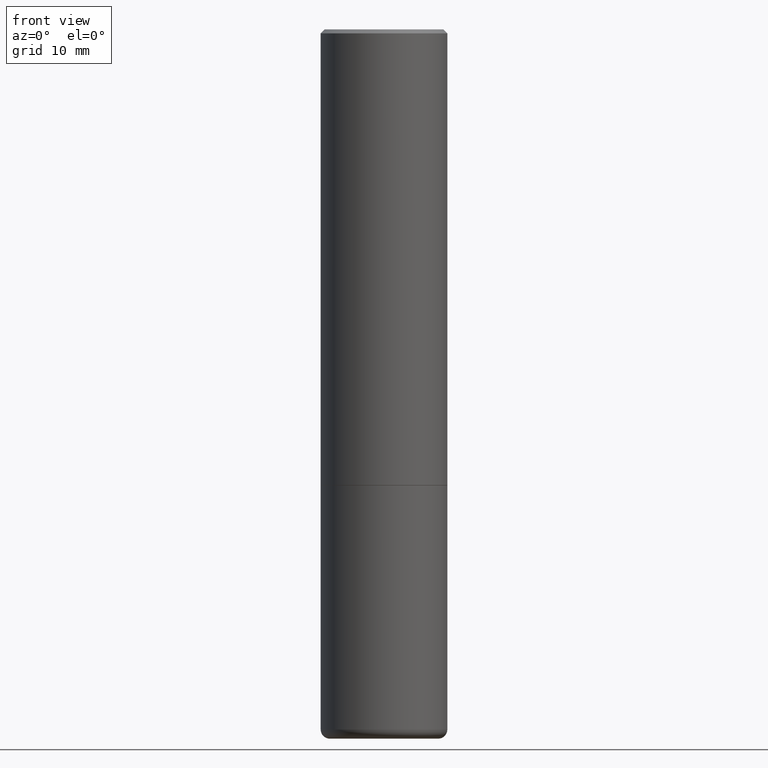
[diagram: clean part render]
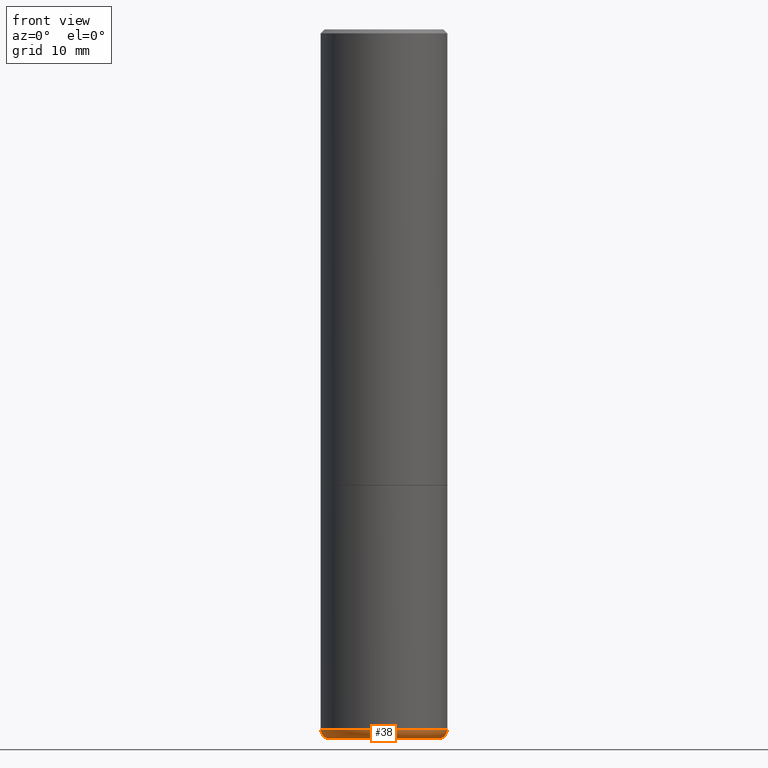
[diagram: same view with one face highlighted and labeled with its STEP entity id]
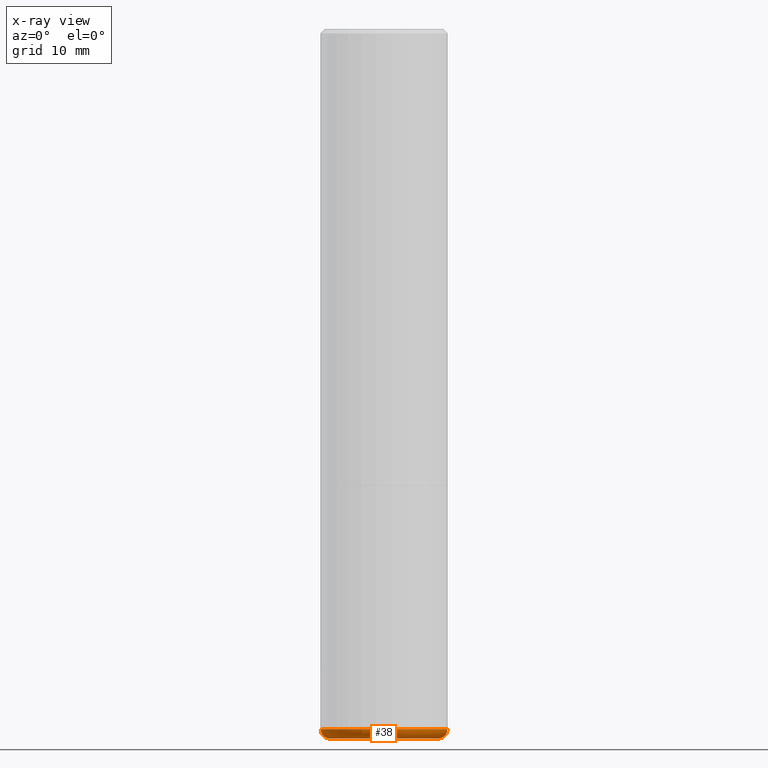
[diagram: x-ray of the same camera — body ghosted, the highlighted face saturated]
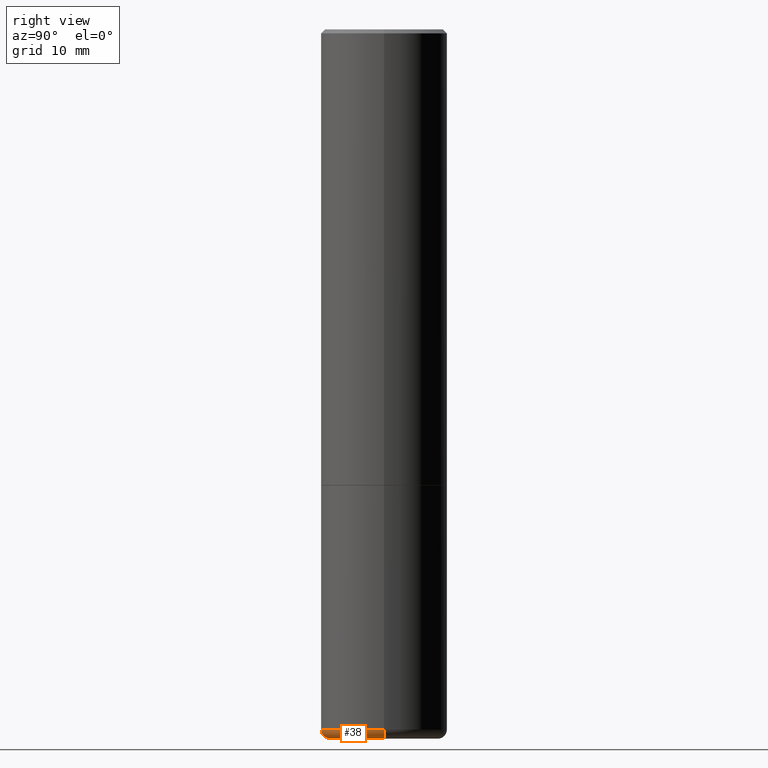
[diagram: same view with one face highlighted and labeled with its STEP entity id]
A machine part, front view. The second image highlights one B-rep face of the part: STEP entity #38.
The next image is the same camera in x-ray: the body ghosted, the highlighted face saturated — about 0% of this face is hidden behind the body in this view.
A second angle (right view) of the same face is appended — the face is thin or edge-on in the first view.
In plain terms, the highlighted toroidal blend (fillet) surface has major radius 6.7945 mm and minor (blend) radius 1.143 mm.
Its self-contained STEP definition (entity closure, byte-faithful):
#10 = AXIS2_PLACEMENT_3D ( 'NONE', #254, #113, #114 ) ;
#22 = CARTESIAN_POINT ( 'NONE',  ( -0.2651448819690678804, -1.008952714362760311E-14, -3.500000000000000000 ) ) ;
#32 = DIRECTION ( 'NONE',  ( -2.445468806185136597E-29, 3.491481338843145583E-15, 1.000000000000000000 ) ) ;
#38 = ADVANCED_FACE ( 'NONE', ( #118 ), #214, .T. ) ;
#47 = EDGE_CURVE ( 'NONE', #61, #299, #149, .T. ) ;
#61 = VERTEX_POINT ( 'NONE', #22 ) ;
#62 = AXIS2_PLACEMENT_3D ( 'NONE', #154, #32, #440 ) ;
#63 = CARTESIAN_POINT ( 'NONE',  ( -0.3125000000000000000, -7.739112131260931893E-15, -3.455061670936044216 ) ) ;
#87 = CIRCLE ( 'NONE', #62, 0.3125000000000000000 ) ;
#103 = EDGE_CURVE ( 'NONE', #61, #227, #437, .T. ) ;
#105 = AXIS2_PLACEMENT_3D ( 'NONE', #222, #438, #297 ) ;
#113 = DIRECTION ( 'NONE',  ( -2.445468806185136597E-29, 3.491481338843145583E-15, 1.000000000000000000 ) ) ;
#114 = DIRECTION ( 'NONE',  ( 1.000000000000000000, -6.982962677686269077E-15, 4.883557194083114022E-29 ) ) ;
#118 = FACE_OUTER_BOUND ( 'NONE', #208, .T. ) ;
#122 = CARTESIAN_POINT ( 'NONE',  ( -0.2675000000000000155, -1.016258153046714615E-14, -3.455061670936044216 ) ) ;
#149 = CIRCLE ( 'NONE', #196, 0.2651448819690678804 ) ;
#153 = ORIENTED_EDGE ( 'NONE', *, *, #47, .T. ) ;
#154 = CARTESIAN_POINT ( 'NONE',  ( 8.449245539719989979E-29, -1.206328334862541465E-14, -3.455061670936044216 ) ) ;
#170 = EDGE_CURVE ( 'NONE', #299, #330, #187, .T. ) ;
#175 = DIRECTION ( 'NONE',  ( 1.000000000000000000, -6.982962677686266711E-15, 0.000000000000000000 ) ) ;
#184 = ORIENTED_EDGE ( 'NONE', *, *, #203, .F. ) ;
#187 = CIRCLE ( 'NONE', #105, 0.04499999999999999833 ) ;
#196 = AXIS2_PLACEMENT_3D ( 'NONE', #219, #385, #175 ) ;
#203 = EDGE_CURVE ( 'NONE', #227, #330, #87, .T. ) ;
#208 = EDGE_LOOP ( 'NONE', ( #420, #153, #353, #184 ) ) ;
#214 = TOROIDAL_SURFACE ( 'NONE', #10, 0.2675000000000000155, 0.04499999999999999140 ) ;
#219 = CARTESIAN_POINT ( 'NONE',  ( 8.559140821647976968E-29, -1.222018468595100934E-14, -3.500000000000000000 ) ) ;
#222 = CARTESIAN_POINT ( 'NONE',  ( 0.2675000000000000155, -1.393122586490649131E-14, -3.455061670936044216 ) ) ;
#227 = VERTEX_POINT ( 'NONE', #63 ) ;
#254 = CARTESIAN_POINT ( 'NONE',  ( 8.449245539719989979E-29, -1.206328334862541465E-14, -3.455061670936044216 ) ) ;
#258 = DIRECTION ( 'NONE',  ( -1.000000000000000000, 7.105427357600990815E-15, 0.000000000000000000 ) ) ;
#260 = DIRECTION ( 'NONE',  ( 7.105427357601001859E-15, 1.000000000000000000, -3.491481338843145583E-15 ) ) ;
#271 = CARTESIAN_POINT ( 'NONE',  ( 0.3125000000000000000, -1.424545918540237458E-14, -3.455061670936044216 ) ) ;
#297 = DIRECTION ( 'NONE',  ( 1.000000000000000000, -6.982962677686269077E-15, 0.000000000000000000 ) ) ;
#299 = VERTEX_POINT ( 'NONE', #337 ) ;
#330 = VERTEX_POINT ( 'NONE', #271 ) ;
#337 = CARTESIAN_POINT ( 'NONE',  ( 0.2651448819690678804, -1.407168150092053958E-14, -3.500000000000000000 ) ) ;
#353 = ORIENTED_EDGE ( 'NONE', *, *, #170, .T. ) ;
#385 = DIRECTION ( 'NONE',  ( -2.445468806185136597E-29, 3.491481338843145583E-15, 1.000000000000000000 ) ) ;
#393 = AXIS2_PLACEMENT_3D ( 'NONE', #122, #260, #258 ) ;
#420 = ORIENTED_EDGE ( 'NONE', *, *, #103, .F. ) ;
#437 = CIRCLE ( 'NONE', #393, 0.04499999999999999833 ) ;
#438 = DIRECTION ( 'NONE',  ( -6.982962677686266711E-15, -1.000000000000000000, 3.491481338843145583E-15 ) ) ;
#440 = DIRECTION ( 'NONE',  ( 1.000000000000000000, -6.982962677686269077E-15, 0.000000000000000000 ) ) ;